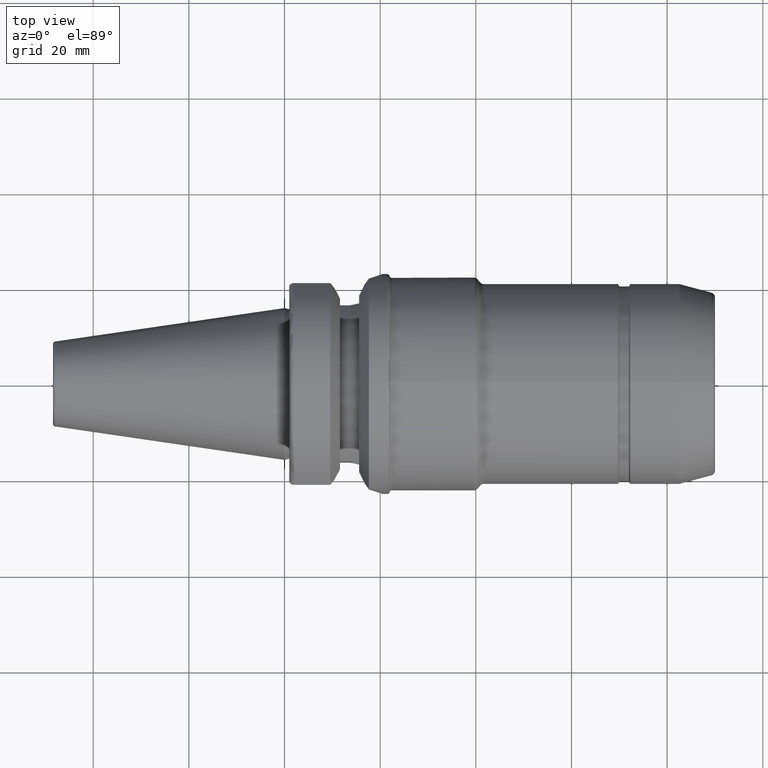
[diagram: clean part render]
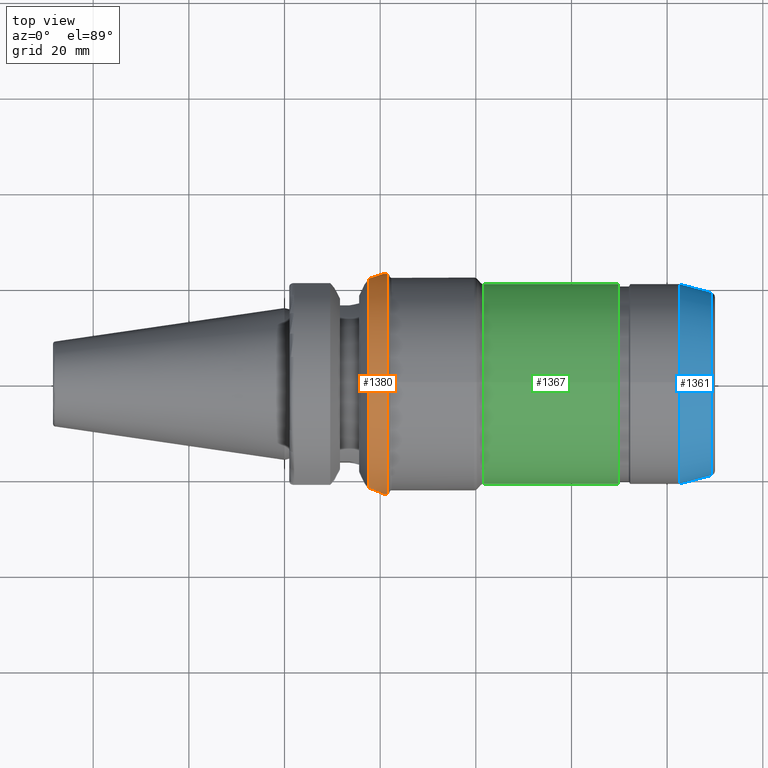
[diagram: same view with three faces highlighted in distinct colors, each labeled with its STEP entity id]
A machine part, top view with three faces highlighted in distinct colors.
Their STEP definitions:

[orange] entity #1380 — the highlighted cylindrical surface (bore or boss wall) has radius 23 mm, axis along (1, 0, 0).
#28=B_SPLINE_CURVE_WITH_KNOTS('',3,(#2274,#2275,#2276,#2277,#2278,#2279,
#2280),.UNSPECIFIED.,.F.,.F.,(4,1,1,1,4),(-1.85152790913834,-1.6722917748423,
-1.49305564054627,-1.31381950625024,-1.22446297208587),.UNSPECIFIED.);
#29=B_SPLINE_CURVE_WITH_KNOTS('',3,(#2282,#2283,#2284,#2285,#2286,#2287),
 .UNSPECIFIED.,.F.,.F.,(4,1,1,4),(-1.22446297208587,-1.1345833719542,-0.776111103362136,
-0.596874969066102),.UNSPECIFIED.);
#32=B_SPLINE_CURVE_WITH_KNOTS('',3,(#2321,#2322,#2323,#2324,#2325,#2326,
#2327,#2328,#2329),.UNSPECIFIED.,.F.,.F.,(4,1,1,1,1,1,4),(-4.29998747957003,
-4.120751345274,-3.94151521097796,-3.76227907668193,-3.5830429423859,-3.22457067379383,
-3.0453345394978),.UNSPECIFIED.);
#135=FACE_OUTER_BOUND('',#214,.T.);
#214=EDGE_LOOP('',(#1028,#1029,#1030,#1031,#1032,#1033,#1034,#1035,#1036,
#1037));
#283=LINE('',#2317,#353);
#353=VECTOR('',#1813,23.);
#460=CIRCLE('',#1528,23.);
#461=CIRCLE('',#1529,23.);
#462=CIRCLE('',#1530,23.);
#463=CIRCLE('',#1531,23.);
#464=CIRCLE('',#1532,23.);
#568=VERTEX_POINT('',#2259);
#569=VERTEX_POINT('',#2273);
#570=VERTEX_POINT('',#2281);
#572=VERTEX_POINT('',#2312);
#573=VERTEX_POINT('',#2313);
#574=VERTEX_POINT('',#2315);
#575=VERTEX_POINT('',#2318);
#576=VERTEX_POINT('',#2320);
#739=EDGE_CURVE('',#568,#569,#28,.T.);
#740=EDGE_CURVE('',#569,#570,#29,.T.);
#743=EDGE_CURVE('',#572,#573,#460,.T.);
#744=EDGE_CURVE('',#574,#572,#461,.T.);
#745=EDGE_CURVE('',#574,#569,#283,.T.);
#746=EDGE_CURVE('',#568,#575,#462,.T.);
#747=EDGE_CURVE('',#576,#575,#32,.T.);
#748=EDGE_CURVE('',#576,#570,#463,.T.);
#749=EDGE_CURVE('',#573,#574,#464,.T.);
#1028=ORIENTED_EDGE('',*,*,#743,.F.);
#1029=ORIENTED_EDGE('',*,*,#744,.F.);
#1030=ORIENTED_EDGE('',*,*,#745,.T.);
#1031=ORIENTED_EDGE('',*,*,#739,.F.);
#1032=ORIENTED_EDGE('',*,*,#746,.T.);
#1033=ORIENTED_EDGE('',*,*,#747,.F.);
#1034=ORIENTED_EDGE('',*,*,#748,.T.);
#1035=ORIENTED_EDGE('',*,*,#740,.F.);
#1036=ORIENTED_EDGE('',*,*,#745,.F.);
#1037=ORIENTED_EDGE('',*,*,#749,.F.);
#1340=CYLINDRICAL_SURFACE('',#1527,23.);
#1380=ADVANCED_FACE('',(#135),#1340,.T.);
#1527=AXIS2_PLACEMENT_3D('',#2311,#1807,#1808);
#1528=AXIS2_PLACEMENT_3D('',#2314,#1809,#1810);
#1529=AXIS2_PLACEMENT_3D('',#2316,#1811,#1812);
#1530=AXIS2_PLACEMENT_3D('',#2319,#1814,#1815);
#1531=AXIS2_PLACEMENT_3D('',#2330,#1816,#1817);
#1532=AXIS2_PLACEMENT_3D('',#2331,#1818,#1819);
#1807=DIRECTION('center_axis',(1.,1.62798202122572E-21,0.));
#1808=DIRECTION('ref_axis',(0.,1.,0.));
#1809=DIRECTION('center_axis',(1.,1.62798202122572E-21,0.));
#1810=DIRECTION('ref_axis',(0.,0.,-1.));
#1811=DIRECTION('center_axis',(1.,1.62798202122572E-21,0.));
#1812=DIRECTION('ref_axis',(0.,0.,-1.));
#1813=DIRECTION('',(-1.,-1.62798202122572E-21,0.));
#1814=DIRECTION('center_axis',(1.,1.62798202122572E-21,0.));
#1815=DIRECTION('ref_axis',(0.,0.,-1.));
#1816=DIRECTION('center_axis',(1.,1.62798202122572E-21,0.));
#1817=DIRECTION('ref_axis',(0.,0.,-1.));
#1818=DIRECTION('center_axis',(1.,1.62798202122572E-21,0.));
#1819=DIRECTION('ref_axis',(0.,0.,-1.));
#2259=CARTESIAN_POINT('',(17.6299409595063,-21.9344969397774,-6.9193817642109));
#2273=CARTESIAN_POINT('',(20.6,-23.,-2.81668763803891E-15));
#2274=CARTESIAN_POINT('Ctrl Pts',(17.6289057200129,-21.9330819123177,-6.9179261851849));
#2275=CARTESIAN_POINT('Ctrl Pts',(18.1593482732592,-22.0904322399561,-6.41902543610058));
#2276=CARTESIAN_POINT('Ctrl Pts',(19.0981399264378,-22.4041728015754,-5.30419069554959));
#2277=CARTESIAN_POINT('Ctrl Pts',(20.1148889498435,-22.7967414143351,-3.29727408795834));
#2278=CARTESIAN_POINT('Ctrl Pts',(20.5347303214091,-22.9713578163009,-1.44798809748698));
#2279=CARTESIAN_POINT('Ctrl Pts',(20.600083076528,-22.9990895591166,-0.361169276616262));
#2280=CARTESIAN_POINT('Ctrl Pts',(20.6005865165035,-22.9994133669961,-2.91607199082167E-7));
#2281=CARTESIAN_POINT('',(17.6299409595063,-21.9344969397774,6.9193817642109));
#2282=CARTESIAN_POINT('Ctrl Pts',(20.6023859656545,-23.0012124584616,3.72301499934613E-7));
#2283=CARTESIAN_POINT('Ctrl Pts',(20.6028925587635,-23.0015382798167,0.363375256108541));
#2284=CARTESIAN_POINT('Ctrl Pts',(20.498197638876,-22.958217581913,2.17400828316322));
#2285=CARTESIAN_POINT('Ctrl Pts',(19.5816238324849,-22.5702619459987,4.76783328407177));
#2286=CARTESIAN_POINT('Ctrl Pts',(18.1599745606896,-22.0917443880111,6.42090606369249));
#2287=CARTESIAN_POINT('Ctrl Pts',(17.6299409595063,-21.9344969397774,6.9193817642109));
#2311=CARTESIAN_POINT('Origin',(19.5649704797531,2.08176742104803E-15,0.));
#2312=CARTESIAN_POINT('',(21.5,23.,0.));
#2313=CARTESIAN_POINT('',(21.5,-7.34917066797608E-16,23.));
#2314=CARTESIAN_POINT('Origin',(21.5,2.0817705712413E-15,0.));
#2315=CARTESIAN_POINT('',(21.5,-23.,-2.81668763803891E-15));
#2316=CARTESIAN_POINT('Origin',(21.5,2.0817705712413E-15,0.));
#2317=CARTESIAN_POINT('',(19.5649704797531,-23.,-2.81668763803891E-15));
#2318=CARTESIAN_POINT('',(17.6299409595063,21.9344969397774,-6.9193817642109));
#2319=CARTESIAN_POINT('Origin',(17.6299409595063,2.08176427085476E-15,0.));
#2320=CARTESIAN_POINT('',(17.6299409595063,21.9344969397774,6.9193817642109));
#2321=CARTESIAN_POINT('Ctrl Pts',(17.6299409595063,21.9344969397774,6.9193817642109));
#2322=CARTESIAN_POINT('Ctrl Pts',(18.1604952638154,22.0918988673453,6.42041636293609));
#2323=CARTESIAN_POINT('Ctrl Pts',(19.0995067876372,22.4057464737272,5.3054113608647));
#2324=CARTESIAN_POINT('Ctrl Pts',(20.1165379145226,22.7984605601393,3.29808549461912));
#2325=CARTESIAN_POINT('Ctrl Pts',(20.6207976888181,23.0082053881162,1.07711060688646));
#2326=CARTESIAN_POINT('Ctrl Pts',(20.6287002269607,23.0134550480022,-1.80469718863172));
#2327=CARTESIAN_POINT('Ctrl Pts',(19.5816238324849,22.5702619459987,-4.76783328407176));
#2328=CARTESIAN_POINT('Ctrl Pts',(18.1599745606896,22.0917443880111,-6.42090606369248));
#2329=CARTESIAN_POINT('Ctrl Pts',(17.6299409595063,21.9344969397774,-6.9193817642109));
#2330=CARTESIAN_POINT('Origin',(17.6299409595063,2.08176427085476E-15,0.));
#2331=CARTESIAN_POINT('Origin',(21.5,2.0817705712413E-15,0.));

[blue] entity #1361 — the highlighted conical surface has half-angle 15 deg.
#96=CONICAL_SURFACE('',#1472,20.,0.261799387799148);
#116=FACE_OUTER_BOUND('',#192,.T.);
#192=EDGE_LOOP('',(#924,#925,#926,#927,#928,#929));
#273=LINE('',#2127,#343);
#343=VECTOR('',#1689,20.);
#420=CIRCLE('',#1469,19.1985988383101);
#421=CIRCLE('',#1470,19.1985988383101);
#423=CIRCLE('',#1473,20.9659258262891);
#424=CIRCLE('',#1474,20.9659258262891);
#533=VERTEX_POINT('',#2119);
#534=VERTEX_POINT('',#2121);
#535=VERTEX_POINT('',#2126);
#536=VERTEX_POINT('',#2128);
#688=EDGE_CURVE('',#533,#534,#420,.T.);
#689=EDGE_CURVE('',#534,#533,#421,.T.);
#691=EDGE_CURVE('',#533,#535,#273,.T.);
#692=EDGE_CURVE('',#536,#535,#423,.T.);
#693=EDGE_CURVE('',#535,#536,#424,.T.);
#924=ORIENTED_EDGE('',*,*,#689,.F.);
#925=ORIENTED_EDGE('',*,*,#688,.F.);
#926=ORIENTED_EDGE('',*,*,#691,.T.);
#927=ORIENTED_EDGE('',*,*,#692,.F.);
#928=ORIENTED_EDGE('',*,*,#693,.F.);
#929=ORIENTED_EDGE('',*,*,#691,.F.);
#1361=ADVANCED_FACE('',(#116),#96,.T.);
#1469=AXIS2_PLACEMENT_3D('',#2122,#1681,#1682);
#1470=AXIS2_PLACEMENT_3D('',#2123,#1683,#1684);
#1472=AXIS2_PLACEMENT_3D('',#2125,#1687,#1688);
#1473=AXIS2_PLACEMENT_3D('',#2129,#1690,#1691);
#1474=AXIS2_PLACEMENT_3D('',#2130,#1692,#1693);
#1681=DIRECTION('center_axis',(1.,0.,0.));
#1682=DIRECTION('ref_axis',(0.,0.,1.));
#1683=DIRECTION('center_axis',(1.,0.,0.));
#1684=DIRECTION('ref_axis',(0.,0.,1.));
#1687=DIRECTION('center_axis',(-1.,0.,0.));
#1688=DIRECTION('ref_axis',(0.,0.,-1.));
#1689=DIRECTION('',(-0.965925826289069,-3.16961915143175E-17,0.258819045102519));
#1690=DIRECTION('center_axis',(-1.,0.,0.));
#1691=DIRECTION('ref_axis',(0.,0.,1.));
#1692=DIRECTION('center_axis',(-1.,0.,0.));
#1693=DIRECTION('ref_axis',(0.,0.,1.));
#2119=CARTESIAN_POINT('',(89.2588190451025,-2.35115026154506E-15,19.1985988383101));
#2121=CARTESIAN_POINT('',(89.2588190451025,0.,-19.1985988383101));
#2122=CARTESIAN_POINT('Origin',(89.2588190451025,-2.35115026154506E-15,
0.));
#2123=CARTESIAN_POINT('Origin',(89.2588190451025,-2.35115026154506E-15,
0.));
#2125=CARTESIAN_POINT('Origin',(86.2679491924311,0.,0.));
#2126=CARTESIAN_POINT('',(82.6630649323773,-2.56758539543257E-15,20.9659258262891));
#2127=CARTESIAN_POINT('',(86.2679491924311,-2.44929359829471E-15,20.));
#2128=CARTESIAN_POINT('',(82.6630649323773,-5.13517079086515E-15,-20.9659258262891));
#2129=CARTESIAN_POINT('Origin',(82.6630649323773,-2.56758539543257E-15,
0.));
#2130=CARTESIAN_POINT('Origin',(82.6630649323773,-2.56758539543257E-15,
0.));

[green] entity #1367 — the highlighted cylindrical surface (bore or boss wall) has radius 21 mm, axis along (1, 0, 0).
#122=FACE_OUTER_BOUND('',#199,.T.);
#199=EDGE_LOOP('',(#958,#959,#960,#961,#962,#963));
#276=LINE('',#2169,#346);
#346=VECTOR('',#1740,21.);
#434=CIRCLE('',#1488,21.);
#435=CIRCLE('',#1489,21.);
#439=CIRCLE('',#1495,21.);
#440=CIRCLE('',#1496,21.);
#545=VERTEX_POINT('',#2152);
#546=VERTEX_POINT('',#2154);
#549=VERTEX_POINT('',#2165);
#550=VERTEX_POINT('',#2166);
#704=EDGE_CURVE('',#545,#546,#434,.T.);
#705=EDGE_CURVE('',#546,#545,#435,.T.);
#710=EDGE_CURVE('',#549,#550,#439,.T.);
#711=EDGE_CURVE('',#550,#549,#440,.T.);
#712=EDGE_CURVE('',#550,#545,#276,.T.);
#958=ORIENTED_EDGE('',*,*,#710,.F.);
#959=ORIENTED_EDGE('',*,*,#711,.F.);
#960=ORIENTED_EDGE('',*,*,#712,.T.);
#961=ORIENTED_EDGE('',*,*,#705,.F.);
#962=ORIENTED_EDGE('',*,*,#704,.F.);
#963=ORIENTED_EDGE('',*,*,#712,.F.);
#1335=CYLINDRICAL_SURFACE('',#1494,21.);
#1367=ADVANCED_FACE('',(#122),#1335,.T.);
#1488=AXIS2_PLACEMENT_3D('',#2155,#1721,#1722);
#1489=AXIS2_PLACEMENT_3D('',#2156,#1723,#1724);
#1494=AXIS2_PLACEMENT_3D('',#2164,#1734,#1735);
#1495=AXIS2_PLACEMENT_3D('',#2167,#1736,#1737);
#1496=AXIS2_PLACEMENT_3D('',#2168,#1738,#1739);
#1721=DIRECTION('center_axis',(-1.,0.,0.));
#1722=DIRECTION('ref_axis',(0.,1.22464679914735E-16,1.));
#1723=DIRECTION('center_axis',(-1.,0.,0.));
#1724=DIRECTION('ref_axis',(0.,1.22464679914735E-16,1.));
#1734=DIRECTION('center_axis',(1.,0.,0.));
#1735=DIRECTION('ref_axis',(0.,0.,-1.));
#1736=DIRECTION('center_axis',(1.,0.,0.));
#1737=DIRECTION('ref_axis',(0.,0.,-1.));
#1738=DIRECTION('center_axis',(1.,0.,0.));
#1739=DIRECTION('ref_axis',(0.,0.,-1.));
#1740=DIRECTION('',(-1.,0.,0.));
#2152=CARTESIAN_POINT('',(41.6642135623731,-2.57175827820944E-15,21.));
#2154=CARTESIAN_POINT('',(41.6642135623731,-5.14351655641888E-15,-21.));
#2155=CARTESIAN_POINT('Origin',(41.6642135623731,0.,0.));
#2156=CARTESIAN_POINT('Origin',(41.6642135623731,0.,0.));
#2164=CARTESIAN_POINT('Origin',(55.4806624327026,0.,0.));
#2165=CARTESIAN_POINT('',(69.7113248654052,0.,-21.));
#2166=CARTESIAN_POINT('',(69.7113248654052,-2.57175827820944E-15,21.));
#2167=CARTESIAN_POINT('Origin',(69.7113248654052,0.,0.));
#2168=CARTESIAN_POINT('Origin',(69.7113248654052,0.,0.));
#2169=CARTESIAN_POINT('',(55.4806624327026,-2.57175827820944E-15,21.));